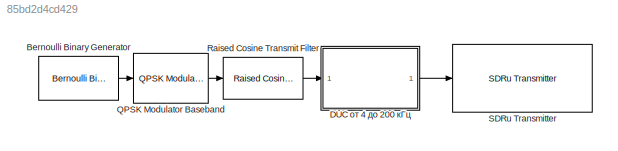
MODEL slx_85bd2d4cd429
KIND model
CONFIG AbsTol = auto
CONFIG EnableMultiTasking = off
CONFIG FixedStep = auto
CONFIG MaxStep = auto
CONFIG MinStep = auto
CONFIG RelTol = 1e-3
CONFIG SampleTimeConstraint = Unconstrained
CONFIG Solver = VariableStepAuto
CONFIG SolverName = VariableStepAuto
CONFIG StartTime = 0.0
CONFIG StopTime = inf
BLOCK [Reference] Bernoulli Binary Generator  REF=commrandsrc3/Bernoulli Binary
Generator
  Ports = [0, 1]
  SourceBlock = commrandsrc3/Bernoulli Binary\nGenerator
  SourceProductBaseCode = CM
  SourceProductName = Communications System Toolbox
  SourceType = Bernoulli Binary Generator
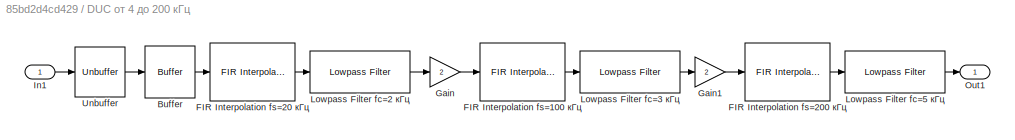
BLOCK [SubSystem] DUC от 4 до 200 кГц 
  Ports = [1, 1]
  RequestExecContextInheritance = off
BLOCK [Buffer] DUC от 4 до 200 кГц /Buffer
  N = 1000
  OutputFrames = off
BLOCK [Reference] DUC от 4 до 200 кГц /FIR Interpolation fs=100 кГц  REF=dspmlti4/FIR
Interpolation
  Ports = [1, 1]
  SourceBlock = dspmlti4/FIR\nInterpolation
  SourceProductBaseCode = DS
  SourceProductName = DSP System Toolbox
  SourceType = FIR Interpolation
  UserDataPersistent = on
BLOCK [Reference] DUC от 4 до 200 кГц /FIR Interpolation fs=20 кГц  REF=dspmlti4/FIR
Interpolation
  Ports = [1, 1]
  SourceBlock = dspmlti4/FIR\nInterpolation
  SourceProductBaseCode = DS
  SourceProductName = DSP System Toolbox
  SourceType = FIR Interpolation
  UserDataPersistent = on
BLOCK [Reference] DUC от 4 до 200 кГц /FIR Interpolation fs=200 кГц  REF=dspmlti4/FIR
Interpolation
  Ports = [1, 1]
  SourceBlock = dspmlti4/FIR\nInterpolation
  SourceProductBaseCode = DS
  SourceProductName = DSP System Toolbox
  SourceType = FIR Interpolation
  UserDataPersistent = on
BLOCK [Gain] DUC от 4 до 200 кГц /Gain
  Gain = 2
  OutDataTypeStr = Inherit: Inherit via internal rule
  ParamDataTypeStr = Inherit: Inherit via internal rule
  SaturateOnIntegerOverflow = off
BLOCK [Gain] DUC от 4 до 200 кГц /Gain1
  Gain = 2
  OutDataTypeStr = Inherit: Inherit via internal rule
  ParamDataTypeStr = Inherit: Inherit via internal rule
  SaturateOnIntegerOverflow = off
BLOCK [Inport] DUC от 4 до 200 кГц /In1
  IconDisplay = Port number
BLOCK [Reference] DUC от 4 до 200 кГц /Lowpass Filter fc=2 кГц  REF=dspfdesign/Lowpass Filter
  Ports = [1, 1]
  SourceBlock = dspfdesign/Lowpass Filter
  SourceProductBaseCode = DS
  SourceProductName = DSP System Toolbox
  SourceType = dsp.LowpassFilter
BLOCK [Reference] DUC от 4 до 200 кГц /Lowpass Filter fc=3 кГц  REF=dspfdesign/Lowpass Filter
  Ports = [1, 1]
  SourceBlock = dspfdesign/Lowpass Filter
  SourceProductBaseCode = DS
  SourceProductName = DSP System Toolbox
  SourceType = dsp.LowpassFilter
BLOCK [Reference] DUC от 4 до 200 кГц /Lowpass Filter fc=5 кГц  REF=dspfdesign/Lowpass Filter
  Ports = [1, 1]
  SourceBlock = dspfdesign/Lowpass Filter
  SourceProductBaseCode = DS
  SourceProductName = DSP System Toolbox
  SourceType = dsp.LowpassFilter
BLOCK [Outport] DUC от 4 до 200 кГц /Out1
  IconDisplay = Port number
BLOCK [Unbuffer] DUC от 4 до 200 кГц /Unbuffer
  Ports = [1, 1]
BLOCK [Reference] QPSK Modulator Baseband  REF=commdigbbndpm3/QPSK
Modulator
Baseband
  Ports = [1, 1]
  SourceBlock = commdigbbndpm3/QPSK\nModulator\nBaseband
  SourceProductBaseCode = CM
  SourceProductName = Communications System Toolbox
  SourceType = QPSK Modulator Baseband
BLOCK [Reference] Raised Cosine Transmit Filter  REF=commfilt2/Raised Cosine
Transmit Filter
  Ports = [1, 1]
  SourceBlock = commfilt2/Raised Cosine\nTransmit Filter
  SourceProductBaseCode = CM
  SourceProductName = Communications System Toolbox
  SourceType = Raised Cosine Transmit Filter
BLOCK [Reference] SDRu Transmitter  REF=commsdrhw_v2/SDRu Transmitter
  Ports = [1]
  SourceBlock = commsdrhw_v2/SDRu Transmitter
  SourceProductBaseCode = USRP
  SourceProductName = Communications System Toolbox Support Package for USRP(R) Radio
  SourceType = SDRu Transmitter
LINE Bernoulli Binary Generator:1 -> QPSK Modulator Baseband:1
LINE DUC от 4 до 200 кГц /Buffer:1 -> DUC от 4 до 200 кГц /FIR Interpolation fs=20 кГц:1
LINE DUC от 4 до 200 кГц /FIR Interpolation fs=100 кГц:1 -> DUC от 4 до 200 кГц /Lowpass Filter fc=3 кГц:1
LINE DUC от 4 до 200 кГц /FIR Interpolation fs=20 кГц:1 -> DUC от 4 до 200 кГц /Lowpass Filter fc=2 кГц:1
LINE DUC от 4 до 200 кГц /FIR Interpolation fs=200 кГц:1 -> DUC от 4 до 200 кГц /Lowpass Filter fc=5 кГц:1
LINE DUC от 4 до 200 кГц /Gain1:1 -> DUC от 4 до 200 кГц /FIR Interpolation fs=200 кГц:1
LINE DUC от 4 до 200 кГц /Gain:1 -> DUC от 4 до 200 кГц /FIR Interpolation fs=100 кГц:1
LINE DUC от 4 до 200 кГц /In1:1 -> DUC от 4 до 200 кГц /Unbuffer:1
LINE DUC от 4 до 200 кГц /Lowpass Filter fc=2 кГц:1 -> DUC от 4 до 200 кГц /Gain:1
LINE DUC от 4 до 200 кГц /Lowpass Filter fc=3 кГц:1 -> DUC от 4 до 200 кГц /Gain1:1
LINE DUC от 4 до 200 кГц /Lowpass Filter fc=5 кГц:1 -> DUC от 4 до 200 кГц /Out1:1
LINE DUC от 4 до 200 кГц /Unbuffer:1 -> DUC от 4 до 200 кГц /Buffer:1
LINE DUC от 4 до 200 кГц :1 -> SDRu Transmitter:1
LINE QPSK Modulator Baseband:1 -> Raised Cosine Transmit Filter:1
LINE Raised Cosine Transmit Filter:1 -> DUC от 4 до 200 кГц :1
